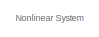
[diagram: root canvas - part 1/4, top left region]
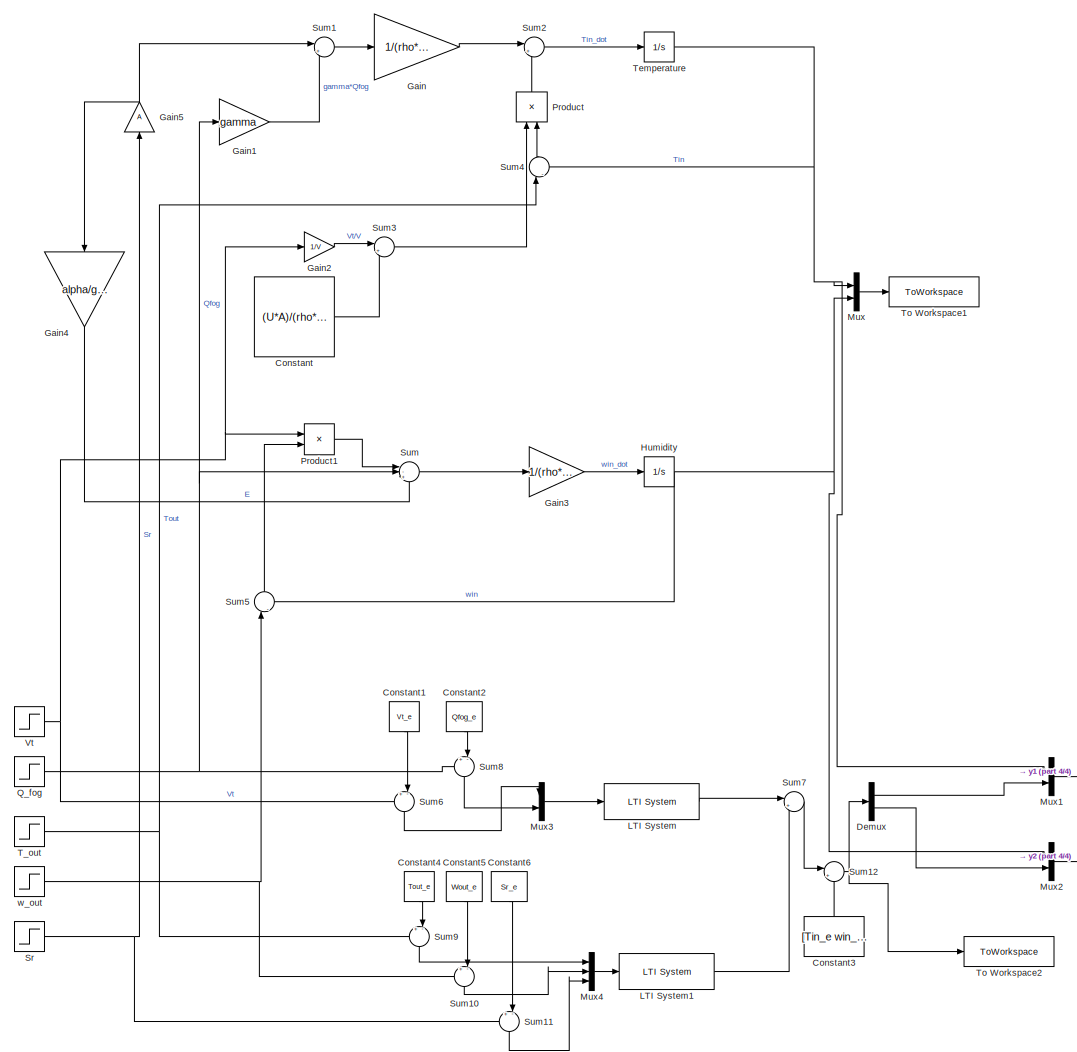
[diagram: root canvas - part 2/4, most of the canvas]
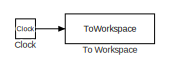
[diagram: root canvas - part 3/4, bottom left region]
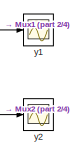
[diagram: root canvas - part 4/4, bottom right region]
MODEL slx_541c1577c87e
KIND model
CONFIG AbsTol = auto
CONFIG EnableMultiTasking = off
CONFIG FixedStep = auto
CONFIG MaxStep = auto
CONFIG MinStep = auto
CONFIG RelTol = 1e-3
CONFIG SampleTimeConstraint = Unconstrained
CONFIG SolverName = VariableStepAuto
CONFIG StartTime = 0.0
CONFIG StopTime = 3600
BLOCK [Clock] Clock
BLOCK [Constant] Constant
  Value = (U*A)/(rho*V*Cp)
BLOCK [Constant] Constant1
  NameLocation = left
  Value = Vt_e
BLOCK [Constant] Constant2
  NameLocation = left
  Value = Qfog_e
BLOCK [Constant] Constant3
  NameLocation = right
  Value = [Tin_e win_e]
BLOCK [Constant] Constant4
  NameLocation = left
  Value = Tout_e
BLOCK [Constant] Constant5
  NameLocation = left
  Value = Wout_e
BLOCK [Constant] Constant6
  NameLocation = left
  Value = Sr_e
BLOCK [Demux] Demux
  Outputs = 2
  Ports = [1, 2]
BLOCK [Gain] Gain
  Gain = 1/(rho*V*Cp)
BLOCK [Gain] Gain1
  Gain = gamma
BLOCK [Gain] Gain2
  Gain = 1/V
BLOCK [Gain] Gain3
  Gain = 1/(rho*V)
BLOCK [Gain] Gain4
  Gain = alpha/gamma
  NameLocation = left
BLOCK [Gain] Gain5
  Gain = A
  NameLocation = right
BLOCK [Integrator] Humidity
  InitialCondition = win_e
  Ports = [1, 1]
BLOCK [Reference] LTI System  REF=cstblocks/LTI System
  Ports = [1, 1]
  SourceBlock = cstblocks/LTI System
  SourceProductBaseCode = CT
  SourceType = LTI Block
BLOCK [Reference] LTI System1  REF=cstblocks/LTI System
  Ports = [1, 1]
  SourceBlock = cstblocks/LTI System
  SourceProductBaseCode = CT
  SourceType = LTI Block
BLOCK [Mux] Mux
  DisplayOption = bar
  Inputs = 2
  Ports = [2, 1]
BLOCK [Mux] Mux1
  DisplayOption = bar
  Inputs = 2
  Ports = [2, 1]
BLOCK [Mux] Mux2
  DisplayOption = bar
  Inputs = 2
  Ports = [2, 1]
BLOCK [Mux] Mux3
  DisplayOption = bar
  Inputs = 2
  Ports = [2, 1]
BLOCK [Mux] Mux4
  DisplayOption = bar
  Inputs = 3
  Ports = [3, 1]
BLOCK [Product] Product
  NameLocation = right
  Ports = [2, 1]
BLOCK [Product] Product1
  Ports = [2, 1]
BLOCK [Step] Q_fog
  After = Qfog
  SampleTime = 0
  Time = 0
BLOCK [Step] Sr
  After = Sr
  SampleTime = 0
  Time = 0
BLOCK [Sum] Sum
  Inputs = |-++
  Ports = [3, 1]
BLOCK [Sum] Sum1
  Inputs = |+-
  Ports = [2, 1]
BLOCK [Sum] Sum10
  Inputs = +-|
  NameLocation = left
  Ports = [2, 1]
BLOCK [Sum] Sum11
  Inputs = +-|
  NameLocation = left
  Ports = [2, 1]
BLOCK [Sum] Sum12
  Inputs = |++
  Ports = [2, 1]
BLOCK [Sum] Sum2
  Inputs = |+-
  Ports = [2, 1]
BLOCK [Sum] Sum3
  Inputs = |++
  Ports = [2, 1]
BLOCK [Sum] Sum4
  Inputs = |-+
  NameLocation = right
  Ports = [2, 1]
BLOCK [Sum] Sum5
  Inputs = |-+
  NameLocation = right
  Ports = [2, 1]
BLOCK [Sum] Sum6
  Inputs = +-|
  NameLocation = left
  Ports = [2, 1]
BLOCK [Sum] Sum7
  Inputs = |++
  Ports = [2, 1]
BLOCK [Sum] Sum8
  Inputs = +-|
  NameLocation = left
  Ports = [2, 1]
BLOCK [Sum] Sum9
  Inputs = +-|
  NameLocation = left
  Ports = [2, 1]
BLOCK [Step] T_out
  After = Tout
  SampleTime = 0
  Time = 0
BLOCK [Integrator] Temperature
  InitialCondition = Tin_e
  Ports = [1, 1]
BLOCK [ToWorkspace] To Workspace
  FixptAsFi = on
  MaxDataPoints = inf
  Ports = [1]
  SampleTime = -1
  SaveFormat = Timeseries
  VariableName = time
BLOCK [ToWorkspace] To Workspace1
  FixptAsFi = on
  MaxDataPoints = inf
  Ports = [1]
  SampleTime = -1
  SaveFormat = Timeseries
  VariableName = y_NL
BLOCK [ToWorkspace] To Workspace2
  FixptAsFi = on
  MaxDataPoints = inf
  Ports = [1]
  SampleTime = -1
  SaveFormat = Timeseries
  VariableName = y_Lin
BLOCK [Step] Vt
  After = Vt-4
  SampleTime = 0
  Time = 0
BLOCK [Step] w_out
  After = wout
  SampleTime = 0
  Time = 0
BLOCK [Scope] y1
  Floating = off
  NumInputPorts = 1
  Ports = [1]
  ScopeSpecificationString = Simulink.scopes.TimeScopeBlockCfg('CurrentConfiguration', extmgr.ConfigurationSet(extmgr.Configuration('Core','General UI',true),extmgr.Configuration('Core','Source UI',true),extmgr.Configuration('Sources','WiredSimulink',true),extmgr.Configuration('Visuals','Time Domain',true,'SerializedDisplays',{struct('MinYLimReal','31.86552','MaxYLimReal','33.17528','YLabelReal','','MinYLimMag','31.86552','Ma...<+1369ch>
BLOCK [Scope] y2
  Floating = off
  NumInputPorts = 1
  Ports = [1]
  ScopeSpecificationString = Simulink.scopes.TimeScopeBlockCfg('CurrentConfiguration', extmgr.ConfigurationSet(extmgr.Configuration('Core','General UI',true),extmgr.Configuration('Core','Source UI',true),extmgr.Configuration('Sources','WiredSimulink',true,'DataLoggingVariableName','ScopeData1'),extmgr.Configuration('Visuals','Time Domain',true,'SerializedDisplays',{struct('MinYLimReal','7.17624','MaxYLimReal','10.02878','YLab...<+1404ch>
ANNOTATION (root): Nonlinear System
LINE Clock:1 -> To Workspace:1
LINE Constant1:1 -> Sum6:2
LINE Constant2:1 -> Sum8:2
LINE Constant3:1 -> Sum12:2
LINE Constant4:1 -> Sum9:2
LINE Constant5:1 -> Sum10:2
LINE Constant6:1 -> Sum11:2
LINE Constant:1 -> Sum3:2
LINE Demux:1 -> Mux1:2
LINE Demux:2 -> Mux2:2
LINE Gain1:1 -> Sum1:2
LINE Gain2:1 -> Sum3:1
LINE Gain3:1 -> Humidity:1
LINE Gain4:1 -> Sum:3
NET Gain5:1 -> Gain4:1, Sum1:1
LINE Gain:1 -> Sum2:1
NET Humidity:1 -> Mux2:1, Mux:2, Sum5:2
LINE LTI System1:1 -> Sum7:2
LINE LTI System:1 -> Sum7:1
LINE Mux1:1 -> y1:1
LINE Mux2:1 -> y2:1
LINE Mux3:1 -> LTI System:1
LINE Mux4:1 -> LTI System1:1
LINE Mux:1 -> To Workspace1:1
LINE Product1:1 -> Sum:1
LINE Product:1 -> Sum2:2
NET Q_fog:1 -> Gain1:1, Sum8:1, Sum:2
NET Sr:1 -> Gain5:1, Sum11:1
LINE Sum10:1 -> Mux4:2
LINE Sum11:1 -> Mux4:3
NET Sum12:1 -> Demux:1, To Workspace2:1
LINE Sum1:1 -> Gain:1
LINE Sum2:1 -> Temperature:1
LINE Sum3:1 -> Product:1
LINE Sum4:1 -> Product:2
LINE Sum5:1 -> Product1:2
LINE Sum6:1 -> Mux3:1
LINE Sum7:1 -> Sum12:1
LINE Sum8:1 -> Mux3:2
LINE Sum9:1 -> Mux4:1
LINE Sum:1 -> Gain3:1
NET T_out:1 -> Sum4:1, Sum9:1
NET Temperature:1 -> Mux1:1, Mux:1, Sum4:2
NET Vt:1 -> Gain2:1, Product1:1, Sum6:1
NET w_out:1 -> Sum10:1, Sum5:1
note: NET lines group one-source signal fan-out (src -> all destinations, sorted); 1:1 wires keep LINE
